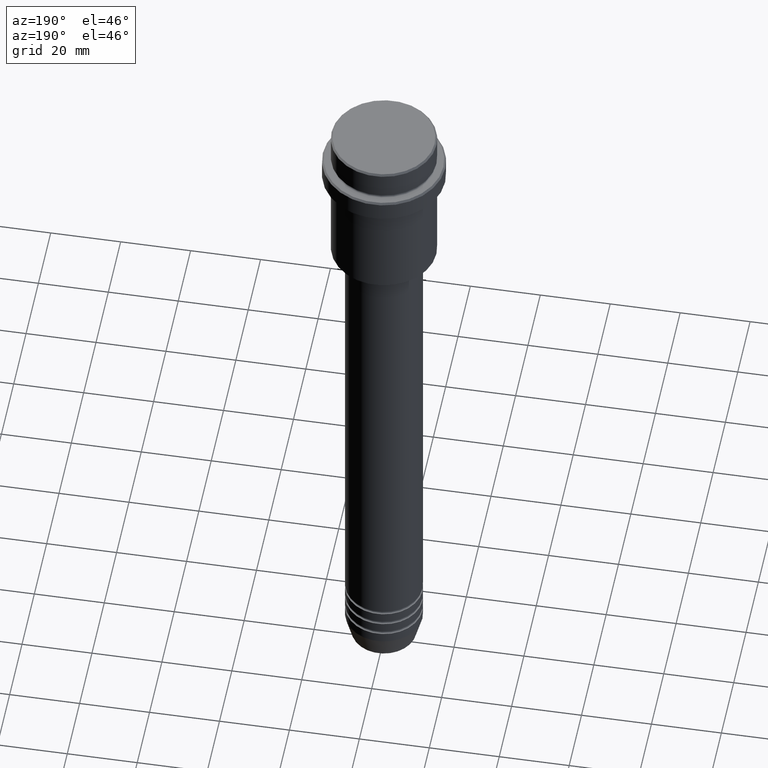
[diagram: clean part render]
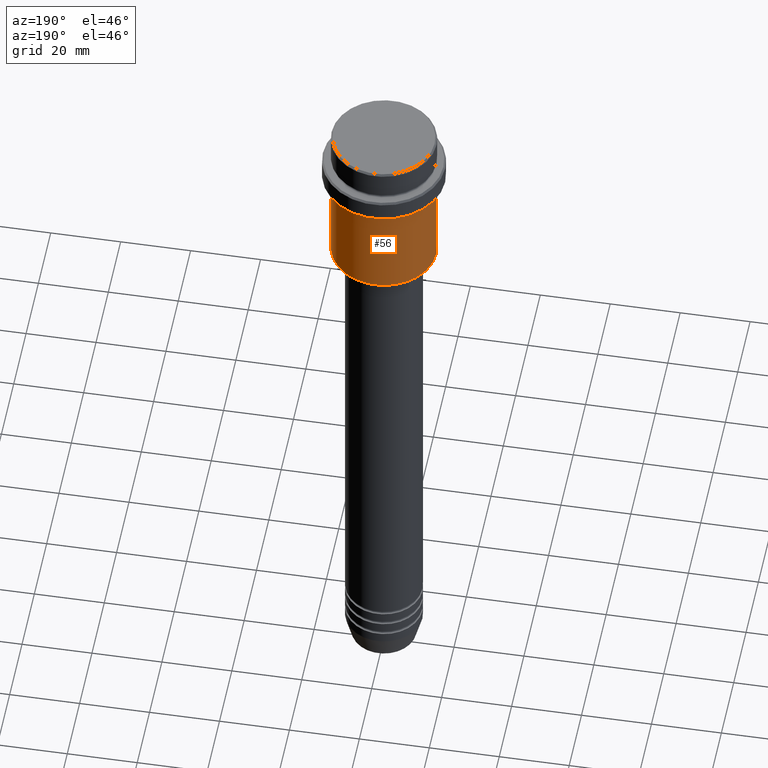
[diagram: same view with one face highlighted and labeled with its STEP entity id]
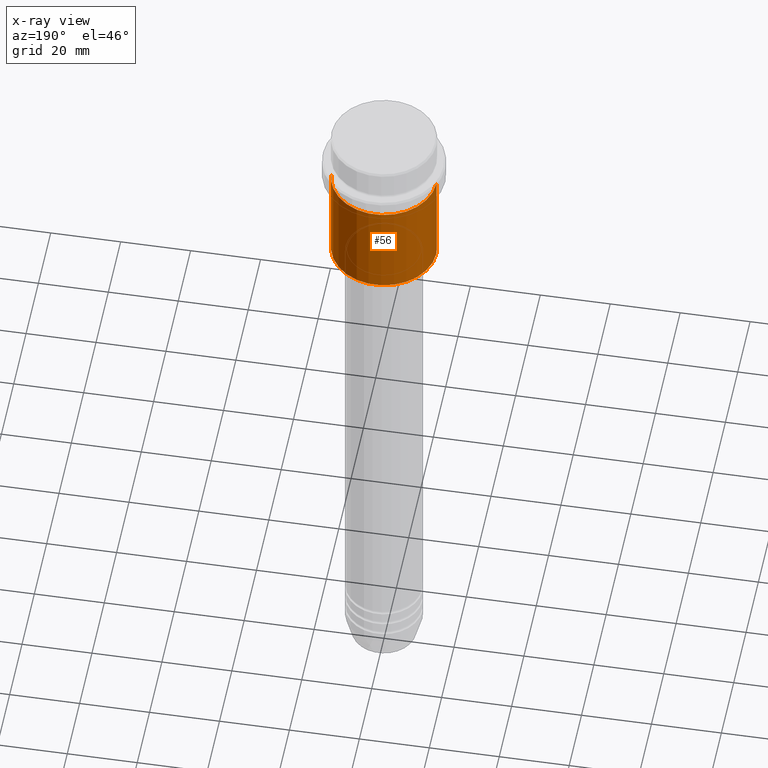
[diagram: x-ray of the same camera — body ghosted, the highlighted face saturated]
A machine part, auxiliary view. The second image highlights one B-rep face of the part: STEP entity #56.
The next image is the same camera in x-ray: the body ghosted, the highlighted face saturated — about 0% of this face is hidden behind the body in this view.
In plain terms, the highlighted cylindrical surface (partial cylindrical patch) has radius 15 mm, axis along (-0, -0, 1).
Its self-contained STEP definition (entity closure, byte-faithful):
#56 = ADVANCED_FACE ( 'NONE', ( #945 ), #1387, .T. ) ;
#114 = AXIS2_PLACEMENT_3D ( 'NONE', #1105, #1195, #1413 ) ;
#164 = LINE ( 'NONE', #686, #1055 ) ;
#198 = LINE ( 'NONE', #855, #384 ) ;
#224 = AXIS2_PLACEMENT_3D ( 'NONE', #484, #385, #1281 ) ;
#231 = ORIENTED_EDGE ( 'NONE', *, *, #530, .T. ) ;
#250 = CIRCLE ( 'NONE', #114, 15.00000000000000178 ) ;
#316 = EDGE_CURVE ( 'NONE', #479, #998, #164, .T. ) ;
#318 = AXIS2_PLACEMENT_3D ( 'NONE', #1046, #1127, #916 ) ;
#344 = EDGE_CURVE ( 'NONE', #479, #401, #474, .T. ) ;
#353 = VERTEX_POINT ( 'NONE', #376 ) ;
#376 = CARTESIAN_POINT ( 'NONE',  ( -15.00000000000000355, 1.836970198721029983E-15, -16.00000000000000000 ) ) ;
#384 = VECTOR ( 'NONE', #1380, 1000.000000000000000 ) ;
#385 = DIRECTION ( 'NONE',  ( -0.000000000000000000, -0.000000000000000000, 1.000000000000000000 ) ) ;
#401 = VERTEX_POINT ( 'NONE', #1139 ) ;
#409 = ORIENTED_EDGE ( 'NONE', *, *, #344, .T. ) ;
#418 = CARTESIAN_POINT ( 'NONE',  ( 15.00000000000000178, 0.000000000000000000, -16.00000000000000000 ) ) ;
#466 = DIRECTION ( 'NONE',  ( -0.000000000000000000, -0.000000000000000000, 1.000000000000000000 ) ) ;
#474 = CIRCLE ( 'NONE', #318, 15.00000000000000000 ) ;
#479 = VERTEX_POINT ( 'NONE', #968 ) ;
#484 = CARTESIAN_POINT ( 'NONE',  ( 0.000000000000000000, 0.000000000000000000, 0.000000000000000000 ) ) ;
#530 = EDGE_CURVE ( 'NONE', #401, #353, #198, .T. ) ;
#686 = CARTESIAN_POINT ( 'NONE',  ( 15.00000000000000000, 0.000000000000000000, 0.000000000000000000 ) ) ;
#713 = EDGE_CURVE ( 'NONE', #998, #353, #250, .T. ) ;
#793 = ORIENTED_EDGE ( 'NONE', *, *, #316, .F. ) ;
#855 = CARTESIAN_POINT ( 'NONE',  ( -15.00000000000000000, 1.836970198721029589E-15, 0.000000000000000000 ) ) ;
#916 = DIRECTION ( 'NONE',  ( -1.000000000000000000, 0.000000000000000000, 0.000000000000000000 ) ) ;
#945 = FACE_OUTER_BOUND ( 'NONE', #965, .T. ) ;
#947 = ORIENTED_EDGE ( 'NONE', *, *, #713, .F. ) ;
#965 = EDGE_LOOP ( 'NONE', ( #409, #231, #947, #793 ) ) ;
#968 = CARTESIAN_POINT ( 'NONE',  ( 15.00000000000000000, 0.000000000000000000, -44.50000000000000711 ) ) ;
#998 = VERTEX_POINT ( 'NONE', #418 ) ;
#1046 = CARTESIAN_POINT ( 'NONE',  ( 0.000000000000000000, 0.000000000000000000, -44.50000000000000711 ) ) ;
#1055 = VECTOR ( 'NONE', #466, 1000.000000000000000 ) ;
#1105 = CARTESIAN_POINT ( 'NONE',  ( 0.000000000000000000, 0.000000000000000000, -16.00000000000000000 ) ) ;
#1127 = DIRECTION ( 'NONE',  ( -0.000000000000000000, -0.000000000000000000, 1.000000000000000000 ) ) ;
#1139 = CARTESIAN_POINT ( 'NONE',  ( -15.00000000000000000, 1.836970198721029589E-15, -44.50000000000000711 ) ) ;
#1195 = DIRECTION ( 'NONE',  ( -0.000000000000000000, -0.000000000000000000, 1.000000000000000000 ) ) ;
#1281 = DIRECTION ( 'NONE',  ( 1.000000000000000000, 0.000000000000000000, 0.000000000000000000 ) ) ;
#1380 = DIRECTION ( 'NONE',  ( -0.000000000000000000, -0.000000000000000000, 1.000000000000000000 ) ) ;
#1387 = CYLINDRICAL_SURFACE ( 'NONE', #224, 15.00000000000000000 ) ;
#1413 = DIRECTION ( 'NONE',  ( 1.000000000000000000, 0.000000000000000000, 0.000000000000000000 ) ) ;